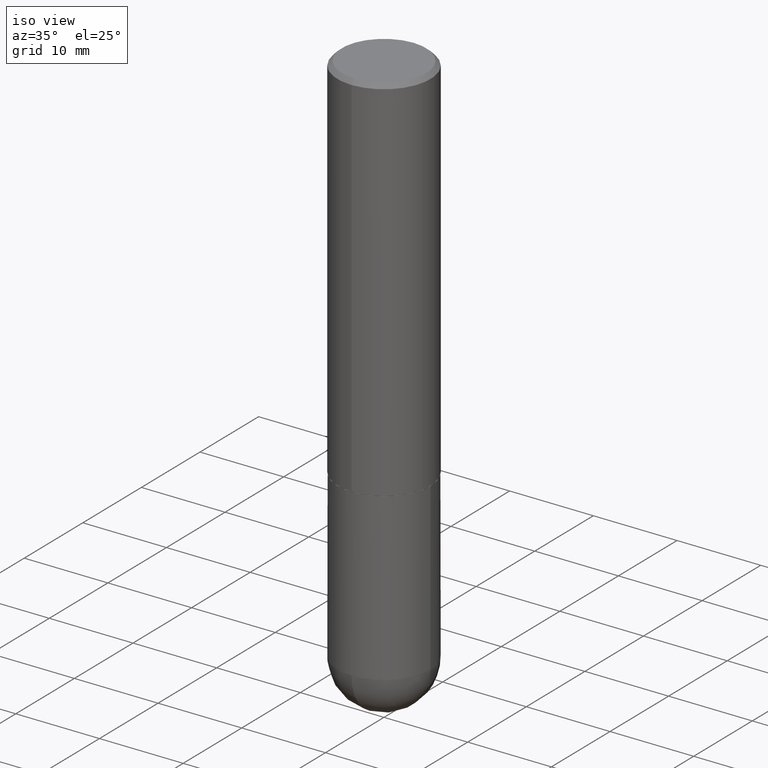
[diagram: clean part render]
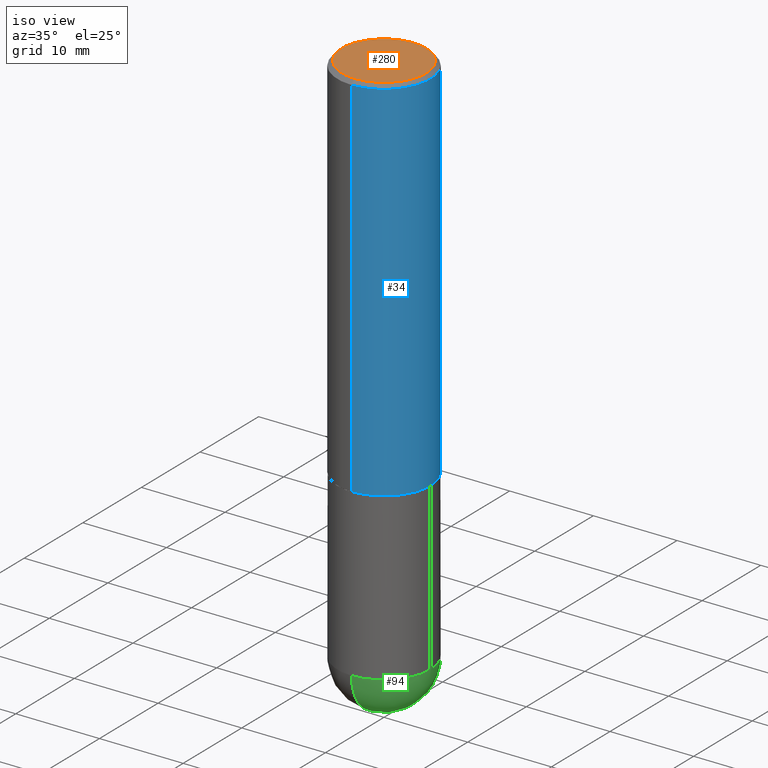
[diagram: same view with three faces highlighted in distinct colors, each labeled with its STEP entity id]
A machine part, iso view with three faces highlighted in distinct colors.
Their STEP definitions:

[orange] entity #280 — the highlighted planar face has unit normal (0, -0, -1).
#6 = ORIENTED_EDGE ( 'NONE', *, *, #230, .T. ) ;
#14 = DIRECTION ( 'NONE',  ( -6.982962677686265922E-15, -1.000000000000000000, 3.491919642402442968E-15 ) ) ;
#23 = CARTESIAN_POINT ( 'NONE',  ( -1.463339128229030463E-45, 2.089784275229042036E-31, 5.984628769381613964E-17 ) ) ;
#33 = AXIS2_PLACEMENT_3D ( 'NONE', #372, #181, #14 ) ;
#50 = CIRCLE ( 'NONE', #92, 0.1987499999999999267 ) ;
#58 = VERTEX_POINT ( 'NONE', #349 ) ;
#70 = EDGE_LOOP ( 'NONE', ( #231, #6 ) ) ;
#72 = PLANE ( 'NONE',  #317 ) ;
#84 = CARTESIAN_POINT ( 'NONE',  ( 1.457693458967008136E-15, 0.1987499999999999267, -6.341727412336692065E-16 ) ) ;
#92 = AXIS2_PLACEMENT_3D ( 'NONE', #23, #369, #229 ) ;
#93 = CIRCLE ( 'NONE', #33, 0.1987499999999999267 ) ;
#128 = VERTEX_POINT ( 'NONE', #84 ) ;
#147 = CARTESIAN_POINT ( 'NONE',  ( 1.387863832190144838E-15, 0.1987499999999999267, -6.640958850805772455E-16 ) ) ;
#181 = DIRECTION ( 'NONE',  ( -2.445162740445529340E-29, 3.491919642402442968E-15, 1.000000000000000000 ) ) ;
#229 = DIRECTION ( 'NONE',  ( -6.982962677686265922E-15, -1.000000000000000000, 3.491919642402442968E-15 ) ) ;
#230 = EDGE_CURVE ( 'NONE', #58, #128, #50, .T. ) ;
#231 = ORIENTED_EDGE ( 'NONE', *, *, #316, .T. ) ;
#241 = DIRECTION ( 'NONE',  ( 2.445162740445529340E-29, -3.491919642402442968E-15, -1.000000000000000000 ) ) ;
#280 = ADVANCED_FACE ( 'NONE', ( #309 ), #72, .F. ) ;
#305 = DIRECTION ( 'NONE',  ( 6.982962677686265922E-15, 1.000000000000000000, -3.491919642402442968E-15 ) ) ;
#309 = FACE_OUTER_BOUND ( 'NONE', #70, .T. ) ;
#316 = EDGE_CURVE ( 'NONE', #128, #58, #93, .T. ) ;
#317 = AXIS2_PLACEMENT_3D ( 'NONE', #147, #241, #305 ) ;
#349 = CARTESIAN_POINT ( 'NONE',  ( -1.432128957034806803E-15, -0.1987499999999999267, 7.538653166213014611E-16 ) ) ;
#369 = DIRECTION ( 'NONE',  ( -2.445162740445529340E-29, 3.491919642402442968E-15, 1.000000000000000000 ) ) ;
#372 = CARTESIAN_POINT ( 'NONE',  ( -1.463339128229030463E-45, 2.089784275229042036E-31, 5.984628769381613964E-17 ) ) ;

[blue] entity #34 — the highlighted cylindrical surface (partial cylindrical patch) has radius 5.5563 mm, axis along (-0, 0, 1).
#5 = VERTEX_POINT ( 'NONE', #121 ) ;
#16 = EDGE_LOOP ( 'NONE', ( #135, #228, #258, #39 ) ) ;
#34 = ADVANCED_FACE ( 'NONE', ( #278 ), #156, .T. ) ;
#39 = ORIENTED_EDGE ( 'NONE', *, *, #98, .F. ) ;
#40 = AXIS2_PLACEMENT_3D ( 'NONE', #273, #260, #376 ) ;
#57 = CARTESIAN_POINT ( 'NONE',  ( -1.527523085743871435E-15, -0.2187500000000001388, 7.638574217755348183E-16 ) ) ;
#90 = EDGE_CURVE ( 'NONE', #91, #174, #145, .T. ) ;
#91 = VERTEX_POINT ( 'NONE', #272 ) ;
#98 = EDGE_CURVE ( 'NONE', #396, #5, #120, .T. ) ;
#102 = CARTESIAN_POINT ( 'NONE',  ( 4.890325480891071152E-31, -6.983839284804902847E-17, -0.02000000000000005246 ) ) ;
#120 = LINE ( 'NONE', #57, #251 ) ;
#121 = CARTESIAN_POINT ( 'NONE',  ( -1.500733937012521938E-15, -0.2187500000000000833, -0.01999999999999928571 ) ) ;
#135 = ORIENTED_EDGE ( 'NONE', *, *, #206, .T. ) ;
#145 = LINE ( 'NONE', #243, #233 ) ;
#156 = CYLINDRICAL_SURFACE ( 'NONE', #326, 0.2187500000000001388 ) ;
#161 = CIRCLE ( 'NONE', #219, 0.2187500000000000278 ) ;
#174 = VERTEX_POINT ( 'NONE', #190 ) ;
#185 = CARTESIAN_POINT ( 'NONE',  ( 0.000000000000000000, 0.000000000000000000, 0.000000000000000000 ) ) ;
#190 = CARTESIAN_POINT ( 'NONE',  ( 1.527523085743871237E-15, 0.2187499999999999445, -0.02000000000000081574 ) ) ;
#206 = EDGE_CURVE ( 'NONE', #396, #91, #223, .T. ) ;
#208 = DIRECTION ( 'NONE',  ( -6.982962677686265922E-15, -1.000000000000000000, 3.492862791899307676E-15 ) ) ;
#219 = AXIS2_PLACEMENT_3D ( 'NONE', #102, #333, #208 ) ;
#222 = DIRECTION ( 'NONE',  ( -2.445162740445529340E-29, 3.491919642402442968E-15, 1.000000000000000000 ) ) ;
#223 = CIRCLE ( 'NONE', #40, 0.2187500000000002220 ) ;
#228 = ORIENTED_EDGE ( 'NONE', *, *, #90, .T. ) ;
#233 = VECTOR ( 'NONE', #407, 39.37007874015748143 ) ;
#243 = CARTESIAN_POINT ( 'NONE',  ( 1.554312234475219748E-15, 0.2187500000000001388, -7.638574217755348183E-16 ) ) ;
#245 = DIRECTION ( 'NONE',  ( -2.445162740445529340E-29, 3.491919642402442968E-15, 1.000000000000000000 ) ) ;
#251 = VECTOR ( 'NONE', #245, 39.37007874015748143 ) ;
#258 = ORIENTED_EDGE ( 'NONE', *, *, #290, .F. ) ;
#260 = DIRECTION ( 'NONE',  ( -2.445162740445529340E-29, 3.491919642402442968E-15, 1.000000000000000000 ) ) ;
#272 = CARTESIAN_POINT ( 'NONE',  ( 1.554312234475241639E-15, 0.2187499999999941158, -1.749000000000000554 ) ) ;
#273 = CARTESIAN_POINT ( 'NONE',  ( 4.276589633039230650E-29, -6.107367454561872318E-15, -1.748999999999999888 ) ) ;
#278 = FACE_OUTER_BOUND ( 'NONE', #16, .T. ) ;
#279 = DIRECTION ( 'NONE',  ( -6.982962677686265133E-15, -1.000000000000000000, 3.491919642402442574E-15 ) ) ;
#290 = EDGE_CURVE ( 'NONE', #5, #174, #161, .T. ) ;
#326 = AXIS2_PLACEMENT_3D ( 'NONE', #185, #222, #279 ) ;
#333 = DIRECTION ( 'NONE',  ( -2.445162740445529340E-29, 3.491919642402442968E-15, 1.000000000000000000 ) ) ;
#376 = DIRECTION ( 'NONE',  ( -6.982962677686265922E-15, -1.000000000000000000, 3.746534391310985612E-15 ) ) ;
#396 = VERTEX_POINT ( 'NONE', #397 ) ;
#397 = CARTESIAN_POINT ( 'NONE',  ( -1.527523085743829428E-15, -0.2187500000000063283, -1.748999999999999000 ) ) ;
#407 = DIRECTION ( 'NONE',  ( -2.445162740445529340E-29, 3.491919642402442968E-15, 1.000000000000000000 ) ) ;

[green] entity #94 — the highlighted spherical surface has radius 5.5563 mm.
#1 = AXIS2_PLACEMENT_3D ( 'NONE', #151, #113, #218 ) ;
#11 = DIRECTION ( 'NONE',  ( -2.445468806185136597E-29, 3.491481338843145583E-15, 1.000000000000000000 ) ) ;
#18 = DIRECTION ( 'NONE',  ( -2.445468806185136597E-29, 3.491481338843145583E-15, 1.000000000000000000 ) ) ;
#29 = ORIENTED_EDGE ( 'NONE', *, *, #379, .T. ) ;
#32 = DIRECTION ( 'NONE',  ( -1.000000000000000000, 7.105427357601001070E-15, -4.926315508542082329E-29 ) ) ;
#41 = CIRCLE ( 'NONE', #377, 0.2187499999999999445 ) ;
#67 = VERTEX_POINT ( 'NONE', #240 ) ;
#71 = AXIS2_PLACEMENT_3D ( 'NONE', #195, #11, #213 ) ;
#94 = ADVANCED_FACE ( 'NONE', ( #402 ), #179, .T. ) ;
#96 = ORIENTED_EDGE ( 'NONE', *, *, #335, .F. ) ;
#97 = VERTEX_POINT ( 'NONE', #374 ) ;
#105 = AXIS2_PLACEMENT_3D ( 'NONE', #315, #32, #158 ) ;
#112 = CARTESIAN_POINT ( 'NONE',  ( 6.190092915656127011E-29, -8.837812138946710888E-15, -2.531250000000000000 ) ) ;
#113 = DIRECTION ( 'NONE',  ( -1.000000000000000000, 6.982962677686265922E-15, -4.883557194083112340E-29 ) ) ;
#114 = CARTESIAN_POINT ( 'NONE',  ( 0.2187499999999999445, -9.001475326704980594E-15, -2.531250000000000000 ) ) ;
#146 = DIRECTION ( 'NONE',  ( 1.000000000000000000, -6.982962677686265922E-15, 4.883557194083112340E-29 ) ) ;
#151 = CARTESIAN_POINT ( 'NONE',  ( 5.858973137742240763E-29, -9.311994507086761184E-15, -2.531250000000000000 ) ) ;
#158 = DIRECTION ( 'NONE',  ( -7.105427357601001070E-15, -1.000000000000000000, 0.000000000000000000 ) ) ;
#164 = EDGE_LOOP ( 'NONE', ( #169, #29, #336, #96 ) ) ;
#169 = ORIENTED_EDGE ( 'NONE', *, *, #180, .F. ) ;
#179 = SPHERICAL_SURFACE ( 'NONE', #1, 0.2187500000000001943 ) ;
#180 = EDGE_CURVE ( 'NONE', #97, #268, #383, .T. ) ;
#195 = CARTESIAN_POINT ( 'NONE',  ( 6.190092915656127011E-29, -8.837812138946710888E-15, -2.531250000000000000 ) ) ;
#199 = DIRECTION ( 'NONE',  ( 6.982962677686265922E-15, 1.000000000000000000, 0.000000000000000000 ) ) ;
#213 = DIRECTION ( 'NONE',  ( 1.000000000000000000, -6.982962677686265133E-15, 0.000000000000000000 ) ) ;
#218 = DIRECTION ( 'NONE',  ( 6.982962677686265922E-15, 1.000000000000000000, -2.497689594207324005E-15 ) ) ;
#227 = VERTEX_POINT ( 'NONE', #114 ) ;
#232 = CARTESIAN_POINT ( 'NONE',  ( -1.554312234475159203E-15, -0.2187500000000091871, -2.531249999999999556 ) ) ;
#237 = DIRECTION ( 'NONE',  ( 1.000000000000000000, -6.982962677686265133E-15, 0.000000000000000000 ) ) ;
#240 = CARTESIAN_POINT ( 'NONE',  ( 1.527523085743931191E-15, 0.2187499999999910072, -2.531250000000000444 ) ) ;
#255 = CIRCLE ( 'NONE', #71, 0.2187499999999999445 ) ;
#268 = VERTEX_POINT ( 'NONE', #232 ) ;
#269 = EDGE_CURVE ( 'NONE', #227, #67, #255, .T. ) ;
#277 = CIRCLE ( 'NONE', #287, 0.2187500000000001943 ) ;
#287 = AXIS2_PLACEMENT_3D ( 'NONE', #394, #146, #199 ) ;
#315 = CARTESIAN_POINT ( 'NONE',  ( 5.858973137742240763E-29, -9.311994507086761184E-15, -2.531250000000000000 ) ) ;
#335 = EDGE_CURVE ( 'NONE', #268, #227, #41, .T. ) ;
#336 = ORIENTED_EDGE ( 'NONE', *, *, #269, .F. ) ;
#374 = CARTESIAN_POINT ( 'NONE',  ( 6.403272820383139972E-29, -1.006236147559302482E-14, -2.750000000000000000 ) ) ;
#377 = AXIS2_PLACEMENT_3D ( 'NONE', #112, #18, #237 ) ;
#379 = EDGE_CURVE ( 'NONE', #97, #67, #277, .T. ) ;
#383 = CIRCLE ( 'NONE', #105, 0.2187500000000001943 ) ;
#394 = CARTESIAN_POINT ( 'NONE',  ( 5.858973137742240763E-29, -9.311994507086761184E-15, -2.531250000000000000 ) ) ;
#402 = FACE_OUTER_BOUND ( 'NONE', #164, .T. ) ;